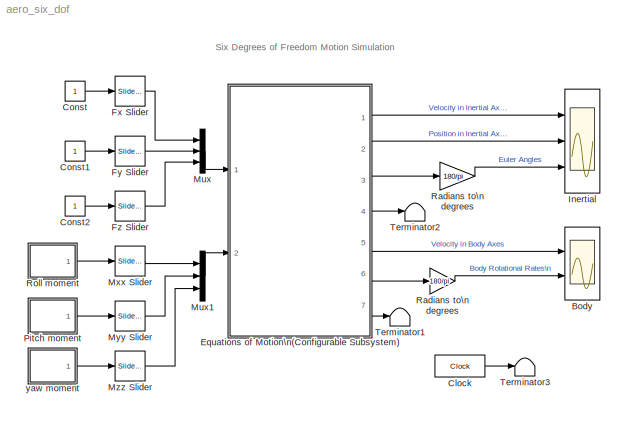
MODEL aero_six_dof
KIND model
BLOCK [Scope] Body
  DataFormat = StructureWithTime
  NumInputPorts = 2
  Ports = [2]
  TimeRange = 10
  YMax = 6~100
  YMin = -2~-100
BLOCK [Clock] Clock
  Decimation = 100
  DisplayTime = on
BLOCK [Constant] Const
BLOCK [Constant] Const1
BLOCK [Constant] Const2
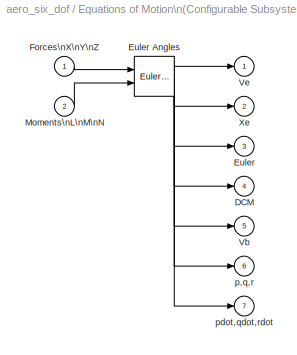
BLOCK [SubSystem] Equations of Motion\n(Configurable Subsystem)
  BlockChoice = Euler Angles
  MemberBlocks = Euler Angles,Quaternions
  MinAlgLoopOccurrences = off
  Ports = [2, 7]
  PropExecContextAcrossSSBoundary = on
  RTWSystemCode = Auto
  TemplateBlock = aerospace/6DoF/Equations of Motion\n(Configurable Subsystem)
  TreatAsAtomicUnit = off
BLOCK [Outport] Equations of Motion\n(Configurable Subsystem)/DCM
  BusOutputAsStruct = off
  IconDisplay = Port number
  Port = 4
BLOCK [Outport] Equations of Motion\n(Configurable Subsystem)/Euler
  BusOutputAsStruct = off
  IconDisplay = Port number
  Port = 3
BLOCK [Reference] Equations of Motion\n(Configurable Subsystem)/Euler Angles  REF=aerospace/6DoF/Euler Angles  (lib defined in mdl_cf564d925549, slx_1354fe9238a2, +3 more)
  Inertia = eye(3)
  Mass = 1.0
  Ports = [2, 7]
  ShowPortLabels = on
  SourceBlock = aerospace/6DoF/Euler Angles
  SourceType = 6DoF Equations of Motion
  Vm_0 = [0 0 0]
  eul_0 = [0 0 0]
  pm_0 = [0 0 0]
  xme_0 = [0 0 0]
BLOCK [Inport] Equations of Motion\n(Configurable Subsystem)/Forces\nX\nY\nZ
  IconDisplay = Port number
  LatchInput = off
  Port = 1
BLOCK [Inport] Equations of Motion\n(Configurable Subsystem)/Moments\nL\nM\nN
  IconDisplay = Port number
  LatchInput = off
  Port = 2
BLOCK [Outport] Equations of Motion\n(Configurable Subsystem)/Vb
  BusOutputAsStruct = off
  IconDisplay = Port number
  Port = 5
BLOCK [Outport] Equations of Motion\n(Configurable Subsystem)/Ve
  BusOutputAsStruct = off
  IconDisplay = Port number
BLOCK [Outport] Equations of Motion\n(Configurable Subsystem)/Xe
  BusOutputAsStruct = off
  IconDisplay = Port number
  Port = 2
BLOCK [Outport] Equations of Motion\n(Configurable Subsystem)/p,q,r
  BusOutputAsStruct = off
  IconDisplay = Port number
  Port = 6
BLOCK [Outport] Equations of Motion\n(Configurable Subsystem)/pdot,qdot,rdot
  BusOutputAsStruct = off
  IconDisplay = Port number
  Port = 7
BLOCK [Reference] Fx Slider  REF=simulink/Math\nOperations/Slider\nGain
  Ports = [1, 1]
  ShowPortLabels = on
  SourceBlock = simulink/Math\nOperations/Slider\nGain
  SourceType = Slider Gain
  gain = 1
  high = 1
  low = -1
BLOCK [Reference] Fy Slider  REF=simulink/Math\nOperations/Slider\nGain
  Ports = [1, 1]
  ShowPortLabels = on
  SourceBlock = simulink/Math\nOperations/Slider\nGain
  SourceType = Slider Gain
  gain = 0
  high = 1
  low = -1
BLOCK [Reference] Fz Slider  REF=simulink/Math\nOperations/Slider\nGain
  Ports = [1, 1]
  ShowPortLabels = on
  SourceBlock = simulink/Math\nOperations/Slider\nGain
  SourceType = Slider Gain
  gain = 0
  high = 1
  low = -1
BLOCK [Scope] Inertial
  DataFormat = StructureWithTime
  LimitDataPoints = off
  NumInputPorts = 3
  Ports = [3]
  SaveName = InertialData
  SaveToWorkspace = on
  TickLabels = on
  TimeRange = 10
  YMax = 6~40~100
  YMin = -2~-10~-50
  ZoomMode = yonly
BLOCK [Mux] Mux
  DisplayOption = bar
  Inputs = 3
  Ports = [3, 1]
BLOCK [Mux] Mux1
  DisplayOption = bar
  Inputs = 3
  Ports = [3, 1]
BLOCK [Reference] Mxx Slider  REF=simulink/Math\nOperations/Slider\nGain
  Ports = [1, 1]
  ShowPortLabels = on
  SourceBlock = simulink/Math\nOperations/Slider\nGain
  SourceType = Slider Gain
  gain = 1
  high = 10
  low = -5
BLOCK [Reference] Myy Slider  REF=simulink/Math\nOperations/Slider\nGain
  Ports = [1, 1]
  ShowPortLabels = on
  SourceBlock = simulink/Math\nOperations/Slider\nGain
  SourceType = Slider Gain
  gain = 1
  high = 10
  low = -10
BLOCK [Reference] Mzz Slider  REF=simulink/Math\nOperations/Slider\nGain
  Ports = [1, 1]
  ShowPortLabels = on
  SourceBlock = simulink/Math\nOperations/Slider\nGain
  SourceType = Slider Gain
  gain = 1
  high = 1
  low = -1
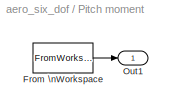
BLOCK [SubSystem] Pitch moment
  MaskCallbackString = |
  MaskDisplay = plot(t,u)
  MaskEnableString = on,on
  MaskIconFrame = on
  MaskIconOpaque = on
  MaskIconRotate = none
  MaskIconUnits = autoscale
  MaskPromptString = time values:|input values
  MaskStyleString = edit,edit
  MaskTabNameString = ,
  MaskToolTipString = on,on
  MaskTunableValueString = on,on
  MaskType = timed input
  MaskValueString = [0 3 3 4 4 5 5  7.5 7.5 8.5 8.5 9.5 9.5 10]|[0 0  1 1 -1 -1.005 0 0 -1 -1 1 1 0 0]*3.138/2
  MaskVarAliasString = ,
  MaskVariables = t=@1;u=@2;
  MaskVisibilityString = on,on
  MinAlgLoopOccurrences = off
  Ports = [0, 1]
  PropExecContextAcrossSSBoundary = on
  RTWSystemCode = Auto
  TreatAsAtomicUnit = off
BLOCK [FromWorkspace] Pitch moment/From \nWorkspace
  SampleTime = 0
  VariableName = [t',u']
BLOCK [Outport] Pitch moment/Out1
  IconDisplay = Port number
  InitialOutput = 0
BLOCK [Gain] Radians to\n degrees
  Gain = 180/pi
BLOCK [Gain] Radians to\n degrees 
  Gain = 180/pi
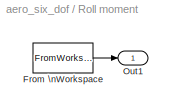
BLOCK [SubSystem] Roll moment
  MaskCallbackString = |
  MaskDisplay = plot(t,u)
  MaskEnableString = on,on
  MaskIconFrame = on
  MaskIconOpaque = on
  MaskIconRotate = none
  MaskIconUnits = autoscale
  MaskPromptString = time values:|input values
  MaskStyleString = edit,edit
  MaskTabNameString = ,
  MaskToolTipString = on,on
  MaskTunableValueString = on,on
  MaskType = timed input
  MaskValueString = [0 1 1 2 2  10]|[1 1 -1 -.998  0 0]*3.144/2
  MaskVarAliasString = ,
  MaskVariables = t=@1;u=@2;
  MaskVisibilityString = on,on
  MinAlgLoopOccurrences = off
  Ports = [0, 1]
  PropExecContextAcrossSSBoundary = on
  RTWSystemCode = Auto
  TreatAsAtomicUnit = off
BLOCK [FromWorkspace] Roll moment/From \nWorkspace
  SampleTime = 0
  VariableName = [t',u']
BLOCK [Outport] Roll moment/Out1
  IconDisplay = Port number
  InitialOutput = 0
BLOCK [Terminator] Terminator1
BLOCK [Terminator] Terminator2
BLOCK [Terminator] Terminator3
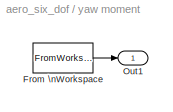
BLOCK [SubSystem] yaw moment
  MaskCallbackString = |
  MaskDisplay = plot(t,u)
  MaskEnableString = on,on
  MaskIconFrame = on
  MaskIconOpaque = on
  MaskIconRotate = none
  MaskIconUnits = autoscale
  MaskPromptString = time values:|input values
  MaskStyleString = edit,edit
  MaskTabNameString = ,
  MaskToolTipString = on,on
  MaskTunableValueString = on,on
  MaskType = timed input
  MaskValueString = [0 6 6 7 7 8 8 10]|[0 0  -1 -1 1 1 0 0]*3.1/2
  MaskVarAliasString = ,
  MaskVariables = t=@1;u=@2;
  MaskVisibilityString = on,on
  MinAlgLoopOccurrences = off
  Ports = [0, 1]
  PropExecContextAcrossSSBoundary = on
  RTWSystemCode = Auto
  TreatAsAtomicUnit = off
BLOCK [FromWorkspace] yaw moment/From \nWorkspace
  SampleTime = 0
  VariableName = [t',u']
BLOCK [Outport] yaw moment/Out1
  IconDisplay = Port number
  InitialOutput = 0
ANNOTATION (root): Six Degrees of Freedom Motion Simulation
LINE Clock:1 -> Terminator3:1
LINE Const1:1 -> Fy Slider:1
LINE Const2:1 -> Fz Slider:1
LINE Const:1 -> Fx Slider:1
LINE Equations of Motion\n(Configurable Subsystem)/Euler Angles:1 -> Equations of Motion\n(Configurable Subsystem)/Ve:1
LINE Equations of Motion\n(Configurable Subsystem)/Euler Angles:2 -> Equations of Motion\n(Configurable Subsystem)/Xe:1
LINE Equations of Motion\n(Configurable Subsystem)/Euler Angles:3 -> Equations of Motion\n(Configurable Subsystem)/Euler:1
LINE Equations of Motion\n(Configurable Subsystem)/Euler Angles:4 -> Equations of Motion\n(Configurable Subsystem)/DCM:1
LINE Equations of Motion\n(Configurable Subsystem)/Euler Angles:5 -> Equations of Motion\n(Configurable Subsystem)/Vb:1
LINE Equations of Motion\n(Configurable Subsystem)/Euler Angles:6 -> Equations of Motion\n(Configurable Subsystem)/p,q,r:1
LINE Equations of Motion\n(Configurable Subsystem)/Euler Angles:7 -> Equations of Motion\n(Configurable Subsystem)/pdot,qdot,rdot:1
LINE Equations of Motion\n(Configurable Subsystem)/Forces\nX\nY\nZ:1 -> Equations of Motion\n(Configurable Subsystem)/Euler Angles:1
LINE Equations of Motion\n(Configurable Subsystem)/Moments\nL\nM\nN:1 -> Equations of Motion\n(Configurable Subsystem)/Euler Angles:2
LINE Equations of Motion\n(Configurable Subsystem):1 -> Inertial:1
LINE Equations of Motion\n(Configurable Subsystem):2 -> Inertial:2
LINE Equations of Motion\n(Configurable Subsystem):3 -> Radians to\n degrees:1
LINE Equations of Motion\n(Configurable Subsystem):4 -> Terminator2:1
LINE Equations of Motion\n(Configurable Subsystem):5 -> Body:1
LINE Equations of Motion\n(Configurable Subsystem):6 -> Radians to\n degrees :1
LINE Equations of Motion\n(Configurable Subsystem):7 -> Terminator1:1
LINE Fx Slider:1 -> Mux:1
LINE Fy Slider:1 -> Mux:2
LINE Fz Slider:1 -> Mux:3
LINE Mux1:1 -> Equations of Motion\n(Configurable Subsystem):2
LINE Mux:1 -> Equations of Motion\n(Configurable Subsystem):1
LINE Mxx Slider:1 -> Mux1:1
LINE Myy Slider:1 -> Mux1:2
LINE Mzz Slider:1 -> Mux1:3
LINE Pitch moment/From \nWorkspace:1 -> Pitch moment/Out1:1
LINE Pitch moment:1 -> Myy Slider:1
LINE Radians to\n degrees :1 -> Body:2
LINE Radians to\n degrees:1 -> Inertial:3
LINE Roll moment/From \nWorkspace:1 -> Roll moment/Out1:1
LINE Roll moment:1 -> Mxx Slider:1
LINE yaw moment/From \nWorkspace:1 -> yaw moment/Out1:1
LINE yaw moment:1 -> Mzz Slider:1
